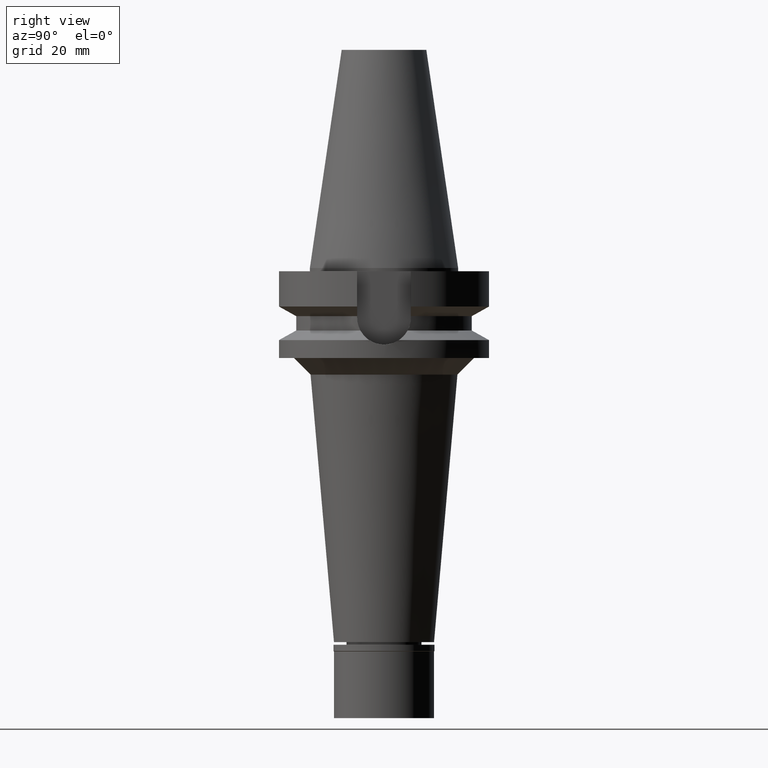
[diagram: clean part render]
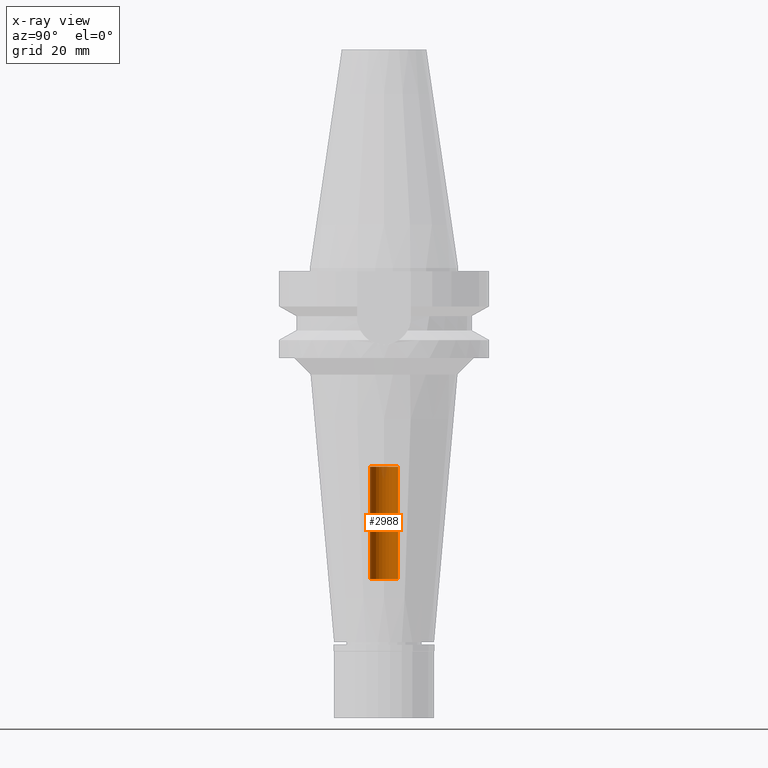
[diagram: x-ray — body ghosted, one internal face saturated and labeled with its STEP entity id]
A machine part, right view, then the same camera in x-ray: the body is ghosted and one INTERNAL B-rep face — a face not visible from any outside direction — is saturated and labeled: STEP entity #2988.
In plain terms, the highlighted cylindrical surface (edge-blend (fillet) strip) has radius 4.2 mm, axis along (0, 0, -1).
Its self-contained STEP definition (entity closure, byte-faithful):
#96 = DIRECTION ( 'NONE',  ( 0.0000000000000000000, 0.0000000000000000000, -1.000000000000000000 ) ) ;
#212 = DIRECTION ( 'NONE',  ( 0.0000000000000000000, 0.0000000000000000000, 1.000000000000000000 ) ) ;
#262 = DIRECTION ( 'NONE',  ( 0.0000000000000000000, 0.0000000000000000000, -1.000000000000000000 ) ) ;
#290 = EDGE_CURVE ( 'NONE', #1769, #2267, #652, .T. ) ;
#311 = DIRECTION ( 'NONE',  ( 0.0000000000000000000, -1.000000000000000000, 0.0000000000000000000 ) ) ;
#414 = ORIENTED_EDGE ( 'NONE', *, *, #1601, .T. ) ;
#522 = AXIS2_PLACEMENT_3D ( 'NONE', #2411, #212, #962 ) ;
#652 = LINE ( 'NONE', #2326, #1103 ) ;
#682 = AXIS2_PLACEMENT_3D ( 'NONE', #1803, #96, #2037 ) ;
#962 = DIRECTION ( 'NONE',  ( 0.0000000000000000000, 1.000000000000000000, 0.0000000000000000000 ) ) ;
#965 = CARTESIAN_POINT ( 'NONE',  ( 0.0000000000000000000, 2.144172848286999836E-14, -93.29999999999999716 ) ) ;
#1009 = CARTESIAN_POINT ( 'NONE',  ( 0.0000000000000000000, 4.200000000000000178, -59.60000000000000142 ) ) ;
#1065 = FACE_OUTER_BOUND ( 'NONE', #2614, .T. ) ;
#1103 = VECTOR ( 'NONE', #1172, 1000.000000000000000 ) ;
#1172 = DIRECTION ( 'NONE',  ( 0.0000000000000000000, 0.0000000000000000000, 1.000000000000000000 ) ) ;
#1224 = LINE ( 'NONE', #2186, #2307 ) ;
#1601 = EDGE_CURVE ( 'NONE', #2937, #2502, #1224, .T. ) ;
#1684 = CARTESIAN_POINT ( 'NONE',  ( 0.0000000000000000000, -4.200000000000000178, -59.60000000000000142 ) ) ;
#1769 = VERTEX_POINT ( 'NONE', #2995 ) ;
#1780 = ORIENTED_EDGE ( 'NONE', *, *, #290, .F. ) ;
#1803 = CARTESIAN_POINT ( 'NONE',  ( 0.0000000000000000000, 2.144172848286999836E-14, 75.08499999999999375 ) ) ;
#1866 = CIRCLE ( 'NONE', #1914, 4.200000000000000178 ) ;
#1914 = AXIS2_PLACEMENT_3D ( 'NONE', #965, #262, #311 ) ;
#2003 = EDGE_CURVE ( 'NONE', #1769, #2937, #1866, .T. ) ;
#2037 = DIRECTION ( 'NONE',  ( 0.0000000000000000000, -1.000000000000000000, 0.0000000000000000000 ) ) ;
#2053 = ORIENTED_EDGE ( 'NONE', *, *, #2003, .T. ) ;
#2186 = CARTESIAN_POINT ( 'NONE',  ( 0.0000000000000000000, 4.200000000000000178, -93.29999999999999716 ) ) ;
#2267 = VERTEX_POINT ( 'NONE', #1684 ) ;
#2273 = CARTESIAN_POINT ( 'NONE',  ( 0.0000000000000000000, 4.200000000000000178, -93.29999999999999716 ) ) ;
#2307 = VECTOR ( 'NONE', #2938, 1000.000000000000000 ) ;
#2326 = CARTESIAN_POINT ( 'NONE',  ( 0.0000000000000000000, -4.200000000000000178, -93.29999999999999716 ) ) ;
#2411 = CARTESIAN_POINT ( 'NONE',  ( 0.0000000000000000000, 2.144172848286999836E-14, -59.60000000000000142 ) ) ;
#2491 = CIRCLE ( 'NONE', #522, 4.200000000000000178 ) ;
#2502 = VERTEX_POINT ( 'NONE', #1009 ) ;
#2614 = EDGE_LOOP ( 'NONE', ( #3033, #1780, #2053, #414 ) ) ;
#2937 = VERTEX_POINT ( 'NONE', #2273 ) ;
#2938 = DIRECTION ( 'NONE',  ( 0.0000000000000000000, 0.0000000000000000000, 1.000000000000000000 ) ) ;
#2988 = ADVANCED_FACE ( 'NONE', ( #1065 ), #2998, .F. ) ;
#2995 = CARTESIAN_POINT ( 'NONE',  ( 0.0000000000000000000, -4.200000000000000178, -93.29999999999999716 ) ) ;
#2998 = CYLINDRICAL_SURFACE ( 'NONE', #682, 4.200000000000000178 ) ;
#3033 = ORIENTED_EDGE ( 'NONE', *, *, #3078, .T. ) ;
#3078 = EDGE_CURVE ( 'NONE', #2502, #2267, #2491, .T. ) ;